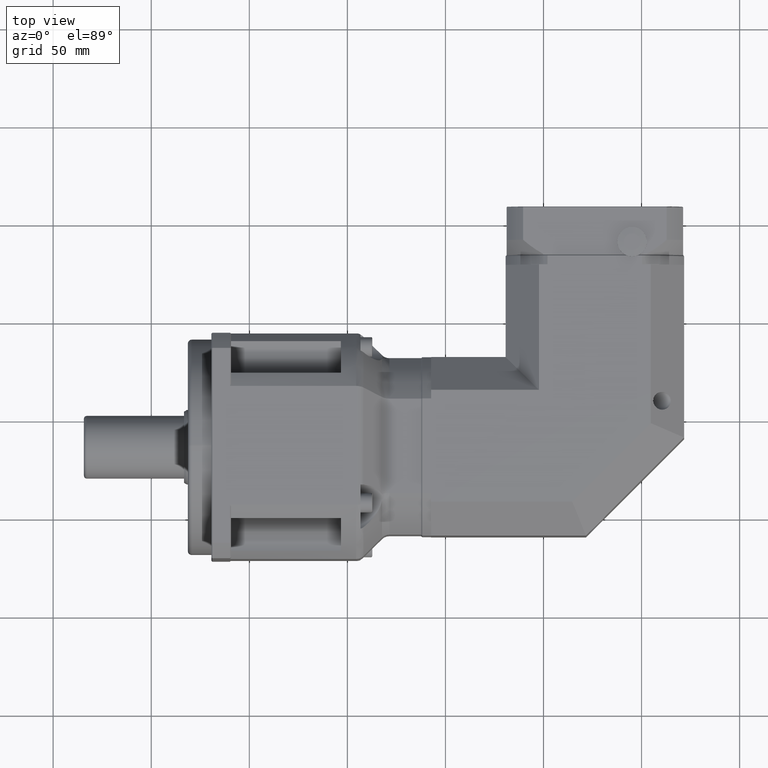
[diagram: clean part render]
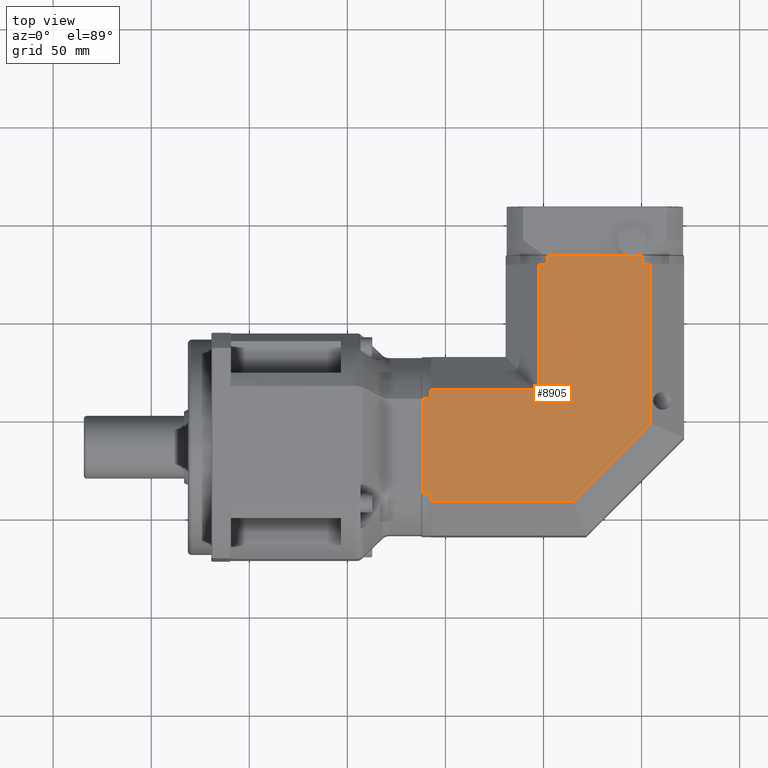
[diagram: same view with one face highlighted and labeled with its STEP entity id]
A machine part, top view. The second image highlights one B-rep face of the part: STEP entity #8905.
In plain terms, the highlighted planar face has unit normal (-0, -0, 1).
Its self-contained STEP definition (entity closure, byte-faithful):
#388=LINE('',#13244,#851);
#532=LINE('',#15145,#995);
#533=LINE('',#15150,#996);
#537=LINE('',#15165,#1000);
#543=LINE('',#15185,#1006);
#556=LINE('',#15217,#1019);
#557=LINE('',#15220,#1020);
#559=LINE('',#15224,#1022);
#561=LINE('',#15227,#1024);
#570=LINE('',#15251,#1033);
#572=LINE('',#15257,#1035);
#576=LINE('',#15263,#1039);
#589=LINE('',#15314,#1052);
#594=LINE('',#15360,#1057);
#598=LINE('',#15375,#1061);
#599=LINE('',#15377,#1062);
#851=VECTOR('',#10710,2.43209376003502);
#995=VECTOR('',#11526,4.37532383637036);
#996=VECTOR('',#11533,4.5);
#1000=VECTOR('',#11547,4.37532383637037);
#1006=VECTOR('',#11565,4.49999999999999);
#1019=VECTOR('',#11594,4.37532383636865);
#1020=VECTOR('',#11597,71.9583694396574);
#1022=VECTOR('',#11601,56.6274169979695);
#1024=VECTOR('',#11605,80.9583694396574);
#1033=VECTOR('',#11628,4.37532383636866);
#1035=VECTOR('',#11634,64.);
#1039=VECTOR('',#11640,55.0000000000582);
#1052=VECTOR('',#11697,4.5);
#1057=VECTOR('',#11718,48.2493523272593);
#1061=VECTOR('',#11738,4.49999999999999);
#1062=VECTOR('',#11741,40.4320937600348);
#2547=FACE_OUTER_BOUND('',#3283,.T.);
#3283=EDGE_LOOP('',(#7420,#7421,#7422,#7423,#7424,#7425,#7426,#7427,#7428,
#7429,#7430,#7431,#7432,#7433,#7434,#7435,#7436));
#3672=CIRCLE('',#9368,7.5);
#4163=VERTEX_POINT('',#13206);
#4165=VERTEX_POINT('',#13209);
#4176=VERTEX_POINT('',#13243);
#4476=VERTEX_POINT('',#15142);
#4477=VERTEX_POINT('',#15144);
#4478=VERTEX_POINT('',#15148);
#4482=VERTEX_POINT('',#15159);
#4484=VERTEX_POINT('',#15163);
#4492=VERTEX_POINT('',#15184);
#4503=VERTEX_POINT('',#15215);
#4504=VERTEX_POINT('',#15219);
#4505=VERTEX_POINT('',#15223);
#4511=VERTEX_POINT('',#15247);
#4513=VERTEX_POINT('',#15250);
#4515=VERTEX_POINT('',#15256);
#4531=VERTEX_POINT('',#15311);
#4536=VERTEX_POINT('',#15373);
#5021=EDGE_CURVE('',#4165,#4163,#3672,.T.);
#5035=EDGE_CURVE('',#4165,#4176,#388,.T.);
#5471=EDGE_CURVE('',#4477,#4476,#532,.T.);
#5474=EDGE_CURVE('',#4478,#4477,#533,.T.);
#5481=EDGE_CURVE('',#4482,#4484,#537,.T.);
#5490=EDGE_CURVE('',#4492,#4176,#543,.T.);
#5507=EDGE_CURVE('',#4503,#4492,#556,.T.);
#5508=EDGE_CURVE('',#4504,#4476,#557,.T.);
#5510=EDGE_CURVE('',#4505,#4504,#559,.T.);
#5512=EDGE_CURVE('',#4503,#4505,#561,.T.);
#5523=EDGE_CURVE('',#4513,#4511,#570,.T.);
#5526=EDGE_CURVE('',#4515,#4511,#572,.T.);
#5530=EDGE_CURVE('',#4482,#4515,#576,.T.);
#5551=EDGE_CURVE('',#4484,#4531,#589,.T.);
#5565=EDGE_CURVE('',#4478,#4531,#594,.T.);
#5571=EDGE_CURVE('',#4536,#4513,#598,.T.);
#5572=EDGE_CURVE('',#4536,#4163,#599,.T.);
#7420=ORIENTED_EDGE('',*,*,#5021,.T.);
#7421=ORIENTED_EDGE('',*,*,#5572,.F.);
#7422=ORIENTED_EDGE('',*,*,#5571,.T.);
#7423=ORIENTED_EDGE('',*,*,#5523,.T.);
#7424=ORIENTED_EDGE('',*,*,#5526,.F.);
#7425=ORIENTED_EDGE('',*,*,#5530,.F.);
#7426=ORIENTED_EDGE('',*,*,#5481,.T.);
#7427=ORIENTED_EDGE('',*,*,#5551,.T.);
#7428=ORIENTED_EDGE('',*,*,#5565,.F.);
#7429=ORIENTED_EDGE('',*,*,#5474,.T.);
#7430=ORIENTED_EDGE('',*,*,#5471,.T.);
#7431=ORIENTED_EDGE('',*,*,#5508,.F.);
#7432=ORIENTED_EDGE('',*,*,#5510,.F.);
#7433=ORIENTED_EDGE('',*,*,#5512,.F.);
#7434=ORIENTED_EDGE('',*,*,#5507,.T.);
#7435=ORIENTED_EDGE('',*,*,#5490,.T.);
#7436=ORIENTED_EDGE('',*,*,#5035,.F.);
#8418=PLANE('',#9798);
#8905=ADVANCED_FACE('',(#2547),#8418,.T.);
#9368=AXIS2_PLACEMENT_3D('',#13210,#10666,#10667);
#9798=AXIS2_PLACEMENT_3D('',#15376,#11739,#11740);
#10666=DIRECTION('center_axis',(6.05789699811209E-16,5.28270955673288E-16,
-1.));
#10667=DIRECTION('ref_axis',(7.70813264659256E-16,1.,-9.43248053513511E-16));
#10710=DIRECTION('',(1.,6.05780371977596E-16,6.0578969981121E-16));
#11526=DIRECTION('',(6.05780371977596E-16,-1.,-5.28270955673288E-16));
#11533=DIRECTION('',(1.,6.05780371977596E-16,6.0578969981121E-16));
#11547=DIRECTION('',(6.05780371977596E-16,-1.,-5.28270955673288E-16));
#11565=DIRECTION('',(-6.05780371977596E-16,1.,5.03870449637508E-16));
#11594=DIRECTION('',(-1.,-6.05780371977596E-16,-6.0578969981121E-16));
#11597=DIRECTION('',(-1.,-6.05780371977596E-16,-6.0578969981121E-16));
#11601=DIRECTION('',(-0.707106781186547,-0.707106781186548,-8.01901979769949E-16));
#11605=DIRECTION('',(6.05780371977596E-16,-1.,-5.28270955673288E-16));
#11628=DIRECTION('',(-1.,-6.05780371977596E-16,-6.0578969981121E-16));
#11634=DIRECTION('',(-6.05780371977596E-16,1.,5.28270955673288E-16));
#11640=DIRECTION('',(1.,6.05780371977596E-16,6.0578969981121E-16));
#11697=DIRECTION('',(-1.,-6.05780371977596E-16,-6.0578969981121E-16));
#11718=DIRECTION('',(-6.05780371977596E-16,1.,5.28270955673288E-16));
#11738=DIRECTION('',(6.05780371977596E-16,-1.,-5.03870449637508E-16));
#11739=DIRECTION('center_axis',(-6.05789699811209E-16,-5.28270955673288E-16,
1.));
#11740=DIRECTION('ref_axis',(5.32907051820075E-16,-1.,0.));
#11741=DIRECTION('',(1.,6.05780371977596E-16,6.0578969981121E-16));
#13206=CARTESIAN_POINT('',(92.492854110823,133.060822002382,123.875721489125));
#13209=CARTESIAN_POINT('',(97.8780189179576,133.060822002382,123.875721489125));
#13210=CARTESIAN_POINT('Origin',(95.1854365143903,140.060822002382,123.875721489125));
#13243=CARTESIAN_POINT('',(100.310112677993,133.060822002382,123.875721489125));
#13244=CARTESIAN_POINT('',(31.9354365143759,133.060822002382,123.875721489125));
#15142=CARTESIAN_POINT('',(-7.31456348563859,7.56082200238151,123.875721489125));
#15144=CARTESIAN_POINT('',(-7.3145634856386,11.9361458387519,123.875721489125));
#15145=CARTESIAN_POINT('',(-7.31456348563863,58.8108220023815,123.875721489125));
#15148=CARTESIAN_POINT('',(-11.8145634856386,11.9361458387519,123.875721489125));
#15150=CARTESIAN_POINT('',(-12.3145634856386,11.9361458387519,123.875721489125));
#15159=CARTESIAN_POINT('',(-7.31456348563863,64.5608220023815,123.875721489125));
#15163=CARTESIAN_POINT('',(-7.31456348563863,60.1854981660111,123.875721489125));
#15165=CARTESIAN_POINT('',(-7.31456348563863,58.8108220023815,123.875721489125));
#15184=CARTESIAN_POINT('',(100.310112677993,128.560822002382,123.875721489125));
#15185=CARTESIAN_POINT('',(100.310112677993,133.560822002382,123.875721489125));
#15215=CARTESIAN_POINT('',(104.685436514361,128.560822002382,123.875721489125));
#15217=CARTESIAN_POINT('',(31.9354365143759,128.560822002382,123.875721489125));
#15219=CARTESIAN_POINT('',(64.6438059540188,7.56082200238155,123.875721489125));
#15220=CARTESIAN_POINT('',(-12.3145634856386,7.56082200238151,123.875721489125));
#15223=CARTESIAN_POINT('',(104.685436514361,47.6024525627242,123.875721489125));
#15224=CARTESIAN_POINT('',(73.9146212341901,16.8316372825529,123.875721489125));
#15227=CARTESIAN_POINT('',(104.685436514361,58.8108220023816,123.875721489125));
#15247=CARTESIAN_POINT('',(47.6854365144196,128.560822002382,123.875721489125));
#15250=CARTESIAN_POINT('',(52.0607603507882,128.560822002382,123.875721489125));
#15251=CARTESIAN_POINT('',(31.9354365143759,128.560822002382,123.875721489125));
#15256=CARTESIAN_POINT('',(47.6854365144196,64.5608220023815,123.875721489125));
#15257=CARTESIAN_POINT('',(47.6854365144196,81.5608220023815,123.875721489125));
#15263=CARTESIAN_POINT('',(-12.3145634856386,64.5608220023815,123.875721489125));
#15311=CARTESIAN_POINT('',(-11.8145634856386,60.1854981660111,123.875721489125));
#15314=CARTESIAN_POINT('',(-12.3145634856386,60.1854981660111,123.875721489125));
#15360=CARTESIAN_POINT('',(-11.8145634856386,58.8108220023815,123.875721489125));
#15373=CARTESIAN_POINT('',(52.0607603507882,133.060822002382,123.875721489125));
#15375=CARTESIAN_POINT('',(52.0607603507882,133.560822002382,123.875721489125));
#15376=CARTESIAN_POINT('Origin',(-12.3145634856386,81.5608220023815,123.875721489125));
#15377=CARTESIAN_POINT('',(31.9354365143759,133.060822002382,123.875721489125));